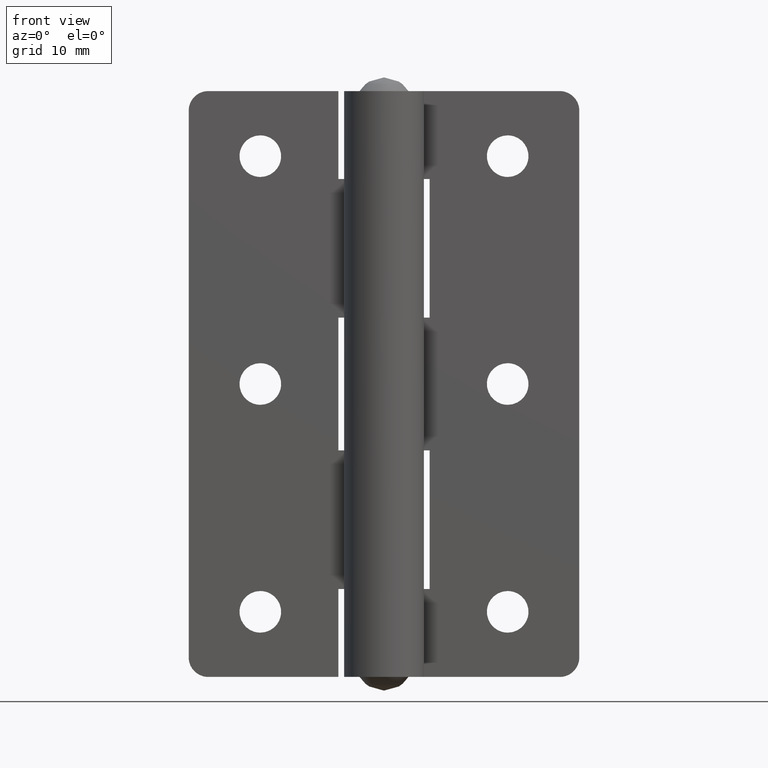
[diagram: clean part render]
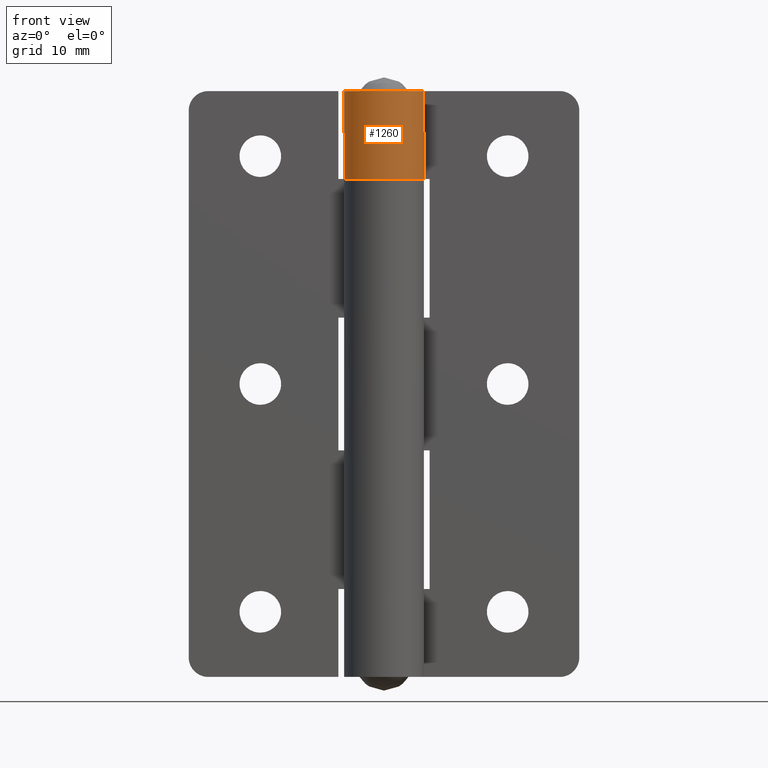
[diagram: same view with one face highlighted and labeled with its STEP entity id]
A machine part, front view. The second image highlights one B-rep face of the part: STEP entity #1260.
In plain terms, the highlighted face is a freeform B-spline surface patch.
Its self-contained STEP definition (entity closure, byte-faithful):
#994=CARTESIAN_POINT('',(5.311544031635240,3.100000000000000,76.500000000000000));
#995=VERTEX_POINT('',#994);
#1001=CARTESIAN_POINT('',(0.0,6.150000000000000,76.500000000000000));
#1002=VERTEX_POINT('',#1001);
#1003=CARTESIAN_POINT('',(0.0,6.150000000000000,76.500000000000000));
#1004=CARTESIAN_POINT('',(-4.724804431383132,6.150000000000000,76.500000000000000));
#1005=CARTESIAN_POINT('',(-5.942310140296078,1.584755563654662,76.500000000000000));
#1006=CARTESIAN_POINT('',(-7.159815849209021,-2.980488872690673,76.500000000000000));
#1007=CARTESIAN_POINT('',(-3.062474489689671,-5.333268228769296,76.500000000000000));
#1008=CARTESIAN_POINT('',(1.034866869829682,-7.686047584847922,76.500000000000000));
#1009=CARTESIAN_POINT('',(4.364009819617642,-4.333349546745659,76.500000000000000));
#1010=CARTESIAN_POINT('',(7.693152769405606,-0.980651508643393,76.500000000000000));
#1011=CARTESIAN_POINT('',(5.311544031635248,3.099999999999997,76.500000000000000));
#1019=(BOUNDED_CURVE()B_SPLINE_CURVE(2,(#1003,#1004,#1005,#1006,#1007,#1008,#1009,#1010,#1011),.UNSPECIFIED.,.F.,.U.)B_SPLINE_CURVE_WITH_KNOTS((3,2,2,2,3),(0.0,0.250000000000000,0.500000000000000,0.750000000000000,1.0),.UNSPECIFIED.)CURVE()GEOMETRIC_REPRESENTATION_ITEM()RATIONAL_B_SPLINE_CURVE((1.0,0.792995533243587,1.0,0.792995533243587,1.0,0.792995533243587,1.0,0.792995533243587,1.0))REPRESENTATION_ITEM(''));
#1020=EDGE_CURVE('',#1002,#995,#1019,.T.);
#1147=CARTESIAN_POINT('',(-1.129699E-015,6.150000000000000,90.0));
#1148=VERTEX_POINT('',#1147);
#1154=CARTESIAN_POINT('',(5.311544031635240,3.100000000000000,90.0));
#1155=VERTEX_POINT('',#1154);
#1156=CARTESIAN_POINT('',(5.311544031635243,3.100000000000005,90.0));
#1157=CARTESIAN_POINT('',(7.693152769405606,-0.980651508643380,90.000000000000014));
#1158=CARTESIAN_POINT('',(4.364009819617648,-4.333349546745652,90.0));
#1159=CARTESIAN_POINT('',(1.034866869829693,-7.686047584847921,90.000000000000014));
#1160=CARTESIAN_POINT('',(-3.062474489689663,-5.333268228769301,90.0));
#1161=CARTESIAN_POINT('',(-7.159815849209024,-2.980488872690681,90.000000000000014));
#1162=CARTESIAN_POINT('',(-5.942310140296080,1.584755563654659,90.0));
#1163=CARTESIAN_POINT('',(-4.724804431383133,6.150000000000000,90.000000000000014));
#1164=CARTESIAN_POINT('',(0.0,6.150000000000000,90.0));
#1172=(BOUNDED_CURVE()B_SPLINE_CURVE(2,(#1156,#1157,#1158,#1159,#1160,#1161,#1162,#1163,#1164),.UNSPECIFIED.,.F.,.U.)B_SPLINE_CURVE_WITH_KNOTS((3,2,2,2,3),(0.0,0.250000000000000,0.500000000000000,0.750000000000000,1.0),.UNSPECIFIED.)CURVE()GEOMETRIC_REPRESENTATION_ITEM()RATIONAL_B_SPLINE_CURVE((1.0,0.792995533243587,1.0,0.792995533243587,1.0,0.792995533243587,1.0,0.792995533243587,1.0))REPRESENTATION_ITEM(''));
#1173=EDGE_CURVE('',#1155,#1148,#1172,.T.);
#1224=CARTESIAN_POINT('',(0.160988232093428,6.147892548599675,90.337500000000020));
#1225=CARTESIAN_POINT('',(0.160988232093428,6.147892548599675,76.154062499999981));
#1226=CARTESIAN_POINT('',(-7.386032988583672,6.345518254365325,90.337500000000020));
#1227=CARTESIAN_POINT('',(-7.386032988583672,6.345518254365325,76.154062499999995));
#1228=CARTESIAN_POINT('',(-6.053435560561366,-1.085549590820735,90.337500000000020));
#1229=CARTESIAN_POINT('',(-6.053435560561366,-1.085549590820735,76.154062499999981));
#1230=CARTESIAN_POINT('',(-4.720838132539059,-8.516617436006793,90.337500000000020));
#1231=CARTESIAN_POINT('',(-4.720838132539059,-8.516617436006793,76.154062499999995));
#1232=CARTESIAN_POINT('',(2.287233854556865,-5.708858142796062,90.337500000000020));
#1233=CARTESIAN_POINT('',(2.287233854556865,-5.708858142796062,76.154062499999981));
#1234=CARTESIAN_POINT('',(9.295305841652787,-2.901098849585333,90.337500000000020));
#1235=CARTESIAN_POINT('',(9.295305841652787,-2.901098849585333,76.154062499999995));
#1236=CARTESIAN_POINT('',(5.128397805713090,3.394412459669143,90.337500000000020));
#1237=CARTESIAN_POINT('',(5.128397805713090,3.394412459669143,76.154062499999981));
#1245=(BOUNDED_SURFACE()B_SPLINE_SURFACE(1,2,((#1224,#1226,#1228,#1230,#1232,#1234,#1236),(#1225,#1227,#1229,#1231,#1233,#1235,#1237)),.UNSPECIFIED.,.F.,.F.,.U.)B_SPLINE_SURFACE_WITH_KNOTS((2,2),(3,2,2,3),(0.0,14.183437500000039),(0.0,11.689709289105380,23.379418578210760,35.069127867316134),.UNSPECIFIED.)GEOMETRIC_REPRESENTATION_ITEM()RATIONAL_B_SPLINE_SURFACE(((1.0,0.631578351302498,1.0,0.631578351302498,1.0,0.631578351302498,1.0),(1.0,0.631578351302498,1.0,0.631578351302498,1.0,0.631578351302498,1.0)))REPRESENTATION_ITEM('')SURFACE());
#1246=ORIENTED_EDGE('',*,*,#1020,.T.);
#1247=CARTESIAN_POINT('',(5.311544031635240,3.100000000000000,90.0));
#1248=CARTESIAN_POINT('',(5.311544031635240,3.100000000000000,76.500000000000000));
#1249=QUASI_UNIFORM_CURVE('',1,(#1247,#1248),.UNSPECIFIED.,.F.,.U.);
#1250=EDGE_CURVE('',#1155,#995,#1249,.T.);
#1251=ORIENTED_EDGE('',*,*,#1250,.F.);
#1252=ORIENTED_EDGE('',*,*,#1173,.T.);
#1253=CARTESIAN_POINT('',(-1.129699E-015,6.150000000000000,90.0));
#1254=CARTESIAN_POINT('',(0.0,6.150000000000000,76.500000000000000));
#1255=QUASI_UNIFORM_CURVE('',1,(#1253,#1254),.UNSPECIFIED.,.F.,.U.);
#1256=EDGE_CURVE('',#1148,#1002,#1255,.T.);
#1257=ORIENTED_EDGE('',*,*,#1256,.T.);
#1258=EDGE_LOOP('',(#1246,#1251,#1252,#1257));
#1259=FACE_OUTER_BOUND('',#1258,.T.);
#1260=ADVANCED_FACE('',(#1259),#1245,.T.);